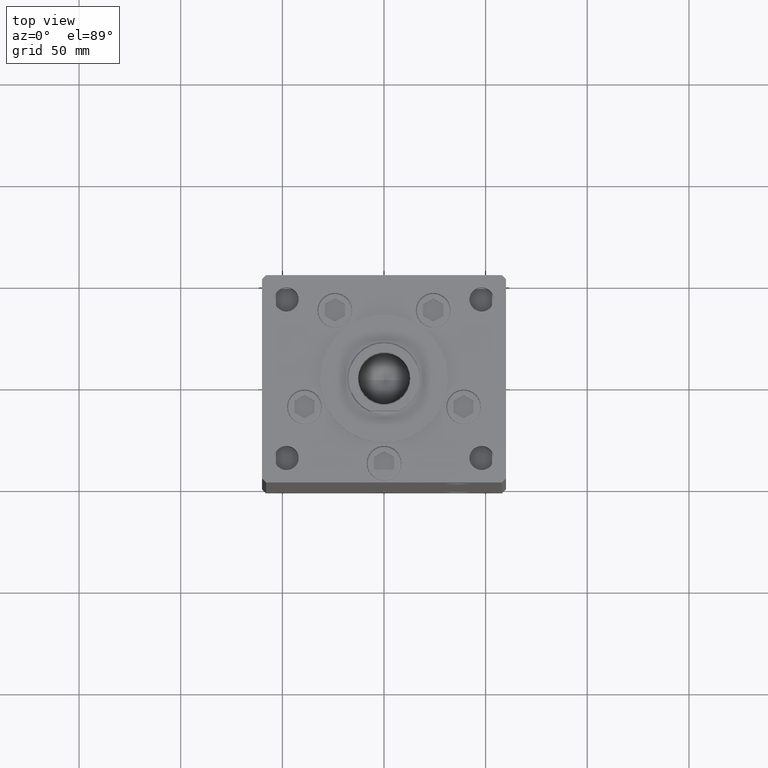
[diagram: clean part render]
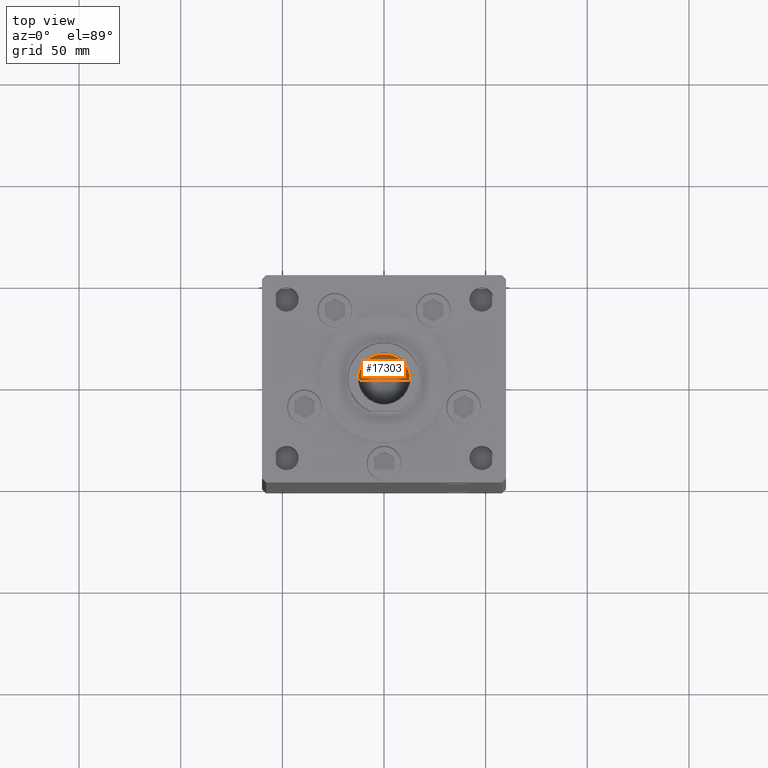
[diagram: same view with one face highlighted and labeled with its STEP entity id]
A machine part, top view. The second image highlights one B-rep face of the part: STEP entity #17303.
In plain terms, the highlighted conical surface has half-angle 59 deg.
Its self-contained STEP definition (entity closure, byte-faithful):
#987 = CARTESIAN_POINT ( 'NONE',  ( -12.74999999999999112, 1.561424668912874125E-15, 244.2500000000000284 ) ) ;
#4052 = LINE ( 'NONE', #44361, #27502 ) ;
#6259 = VERTEX_POINT ( 'NONE', #47695 ) ;
#6294 = EDGE_CURVE ( 'NONE', #48261, #19494, #32630, .T. ) ;
#8064 = DIRECTION ( 'NONE',  ( -0.000000000000000000, -0.000000000000000000, 1.000000000000000000 ) ) ;
#8684 = DIRECTION ( 'NONE',  ( 1.000000000000000000, 0.000000000000000000, 0.000000000000000000 ) ) ;
#8755 = VECTOR ( 'NONE', #31771, 1000.000000000000000 ) ;
#11985 = CARTESIAN_POINT ( 'NONE',  ( 12.74999999999999112, 0.000000000000000000, 244.2500000000000284 ) ) ;
#12052 = ORIENTED_EDGE ( 'NONE', *, *, #36698, .F. ) ;
#13988 = ORIENTED_EDGE ( 'NONE', *, *, #21997, .T. ) ;
#14501 = CONICAL_SURFACE ( 'NONE', #49881, 12.74999999999999112, 1.029744258676651869 ) ;
#16321 = DIRECTION ( 'NONE',  ( -0.000000000000000000, -0.000000000000000000, 1.000000000000000000 ) ) ;
#17303 = ADVANCED_FACE ( 'NONE', ( #47869 ), #14501, .F. ) ;
#18868 = CARTESIAN_POINT ( 'NONE',  ( 12.74999999999999112, 0.000000000000000000, 244.2500000000000284 ) ) ;
#19494 = VERTEX_POINT ( 'NONE', #987 ) ;
#21997 = EDGE_CURVE ( 'NONE', #6259, #48261, #47596, .T. ) ;
#27059 = DIRECTION ( 'NONE',  ( 1.000000000000000000, 0.000000000000000000, 0.000000000000000000 ) ) ;
#27502 = VECTOR ( 'NONE', #36452, 1000.000000000000000 ) ;
#31771 = DIRECTION ( 'NONE',  ( 0.8571673007021110013, 0.000000000000000000, 0.5150380749100563760 ) ) ;
#32630 = CIRCLE ( 'NONE', #50319, 12.74999999999999112 ) ;
#35584 = ORIENTED_EDGE ( 'NONE', *, *, #6294, .T. ) ;
#36002 = CARTESIAN_POINT ( 'NONE',  ( 0.000000000000000000, 0.000000000000000000, 244.2500000000000284 ) ) ;
#36452 = DIRECTION ( 'NONE',  ( -0.8571673007021110013, 1.049727191138617093E-16, 0.5150380749100563760 ) ) ;
#36698 = EDGE_CURVE ( 'NONE', #6259, #19494, #4052, .T. ) ;
#41089 = CARTESIAN_POINT ( 'NONE',  ( 0.000000000000000000, 0.000000000000000000, 244.2500000000000284 ) ) ;
#42355 = EDGE_LOOP ( 'NONE', ( #12052, #13988, #35584 ) ) ;
#44361 = CARTESIAN_POINT ( 'NONE',  ( -12.74999999999999112, 1.561424668912874125E-15, 244.2500000000000284 ) ) ;
#47596 = LINE ( 'NONE', #18868, #8755 ) ;
#47695 = CARTESIAN_POINT ( 'NONE',  ( -1.307202896762960287E-14, 0.000000000000000000, 236.5890271073986071 ) ) ;
#47869 = FACE_OUTER_BOUND ( 'NONE', #42355, .T. ) ;
#48261 = VERTEX_POINT ( 'NONE', #11985 ) ;
#49881 = AXIS2_PLACEMENT_3D ( 'NONE', #36002, #8064, #27059 ) ;
#50319 = AXIS2_PLACEMENT_3D ( 'NONE', #41089, #16321, #8684 ) ;